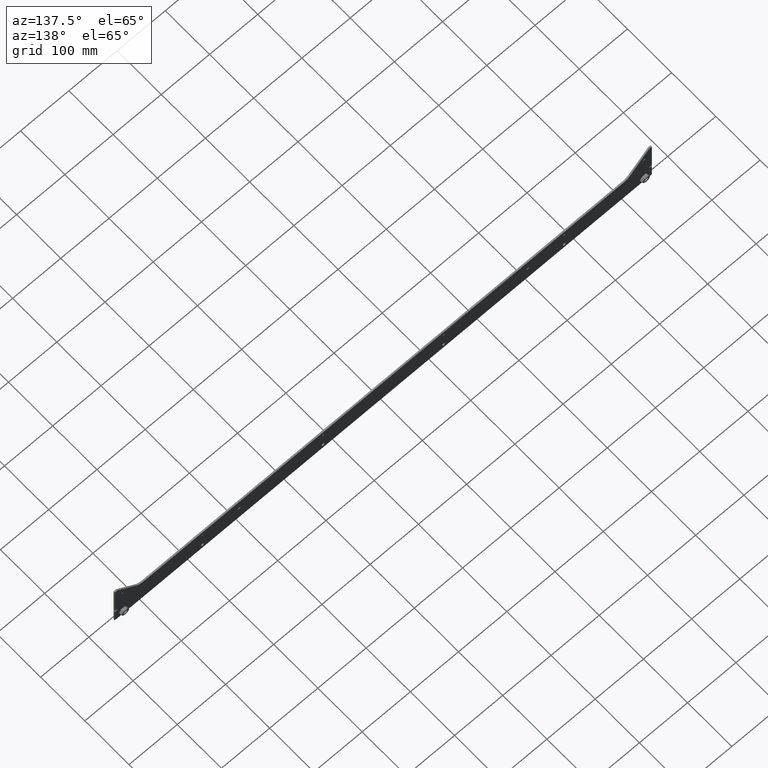
[diagram: clean part render]
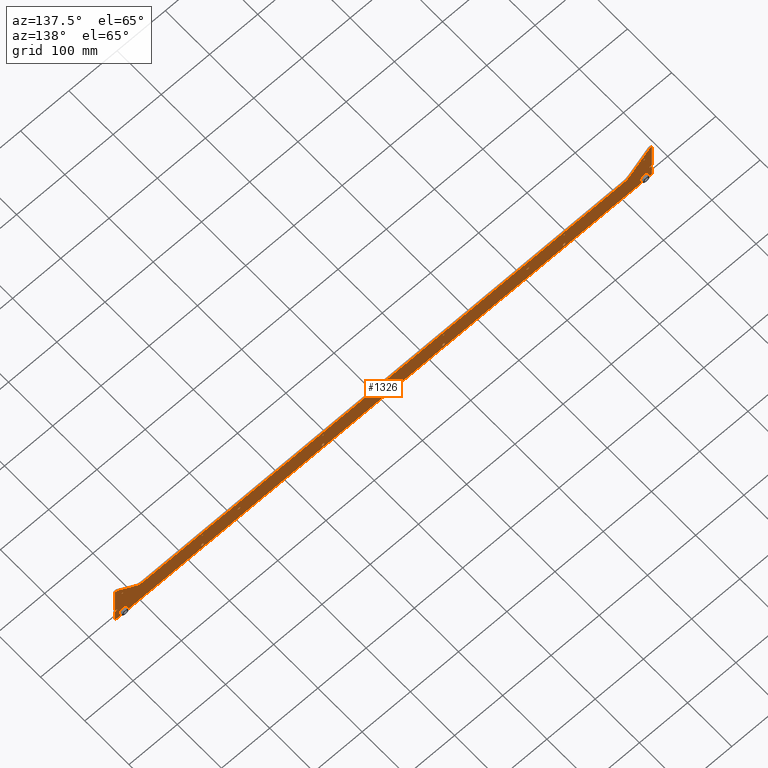
[diagram: same view with one face highlighted and labeled with its STEP entity id]
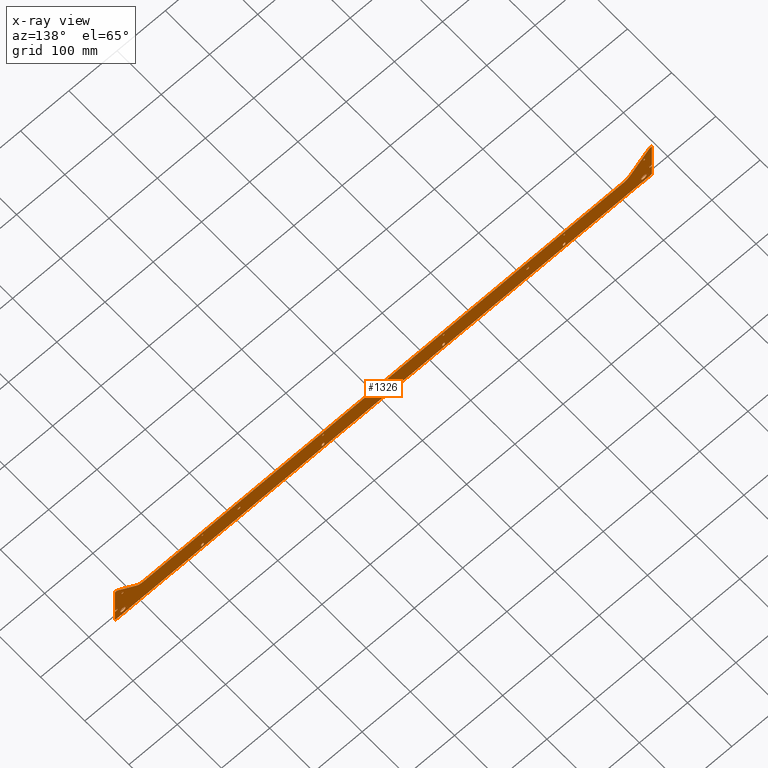
[diagram: x-ray of the same camera — body ghosted, the highlighted face saturated]
A machine part, auxiliary view. The second image highlights one B-rep face of the part: STEP entity #1326.
The next image is the same camera in x-ray: the body ghosted, the highlighted face saturated — about 0% of this face is hidden behind the body in this view.
In plain terms, the highlighted planar face has unit normal (0, 1, 0).
Its self-contained STEP definition (entity closure, byte-faithful):
#10 = DIRECTION ( 'NONE',  ( -0.000000000000000000, -1.000000000000000000, -0.000000000000000000 ) ) ;
#12 = ORIENTED_EDGE ( 'NONE', *, *, #2245, .T. ) ;
#25 = CARTESIAN_POINT ( 'NONE',  ( -122.2500000000000853, -1088.305264068951146, -1224.999999999999091 ) ) ;
#29 = DIRECTION ( 'NONE',  ( 0.000000000000000000, 0.000000000000000000, 1.000000000000000000 ) ) ;
#40 = AXIS2_PLACEMENT_3D ( 'NONE', #1622, #2707, #2167 ) ;
#41 = AXIS2_PLACEMENT_3D ( 'NONE', #2776, #2276, #2813 ) ;
#44 = FACE_BOUND ( 'NONE', #345, .T. ) ;
#49 = CIRCLE ( 'NONE', #3058, 1.600000000000045830 ) ;
#50 = CARTESIAN_POINT ( 'NONE',  ( -375.0000000000000000, -1088.305264068951146, -1222.999999999999318 ) ) ;
#52 = ORIENTED_EDGE ( 'NONE', *, *, #2030, .F. ) ;
#56 = DIRECTION ( 'NONE',  ( -1.000000000000000000, 0.000000000000000000, 0.000000000000000000 ) ) ;
#59 = ORIENTED_EDGE ( 'NONE', *, *, #1518, .F. ) ;
#78 = EDGE_CURVE ( 'NONE', #140, #731, #357, .T. ) ;
#83 = ORIENTED_EDGE ( 'NONE', *, *, #2215, .F. ) ;
#85 = CARTESIAN_POINT ( 'NONE',  ( 127.7499999999999147, -1088.305264068951146, -1224.999999999999091 ) ) ;
#91 = LINE ( 'NONE', #1210, #669 ) ;
#94 = VERTEX_POINT ( 'NONE', #3294 ) ;
#97 = EDGE_CURVE ( 'NONE', #1507, #2668, #1549, .T. ) ;
#99 = CARTESIAN_POINT ( 'NONE',  ( -540.9726412919829954, -1088.305264068951146, -1160.573330363768491 ) ) ;
#100 = DIRECTION ( 'NONE',  ( 0.000000000000000000, 0.000000000000000000, 1.000000000000000000 ) ) ;
#105 = LINE ( 'NONE', #3284, #2119 ) ;
#111 = LINE ( 'NONE', #1997, #2451 ) ;
#115 = DIRECTION ( 'NONE',  ( 0.000000000000000000, 0.000000000000000000, 1.000000000000000000 ) ) ;
#126 = EDGE_CURVE ( 'NONE', #2668, #1507, #708, .T. ) ;
#135 = DIRECTION ( 'NONE',  ( -0.000000000000000000, 1.000000000000000000, -0.000000000000000000 ) ) ;
#140 = VERTEX_POINT ( 'NONE', #3157 ) ;
#149 = CIRCLE ( 'NONE', #2555, 2.749999999999808153 ) ;
#157 = CIRCLE ( 'NONE', #3273, 2.749999999999808153 ) ;
#159 = CARTESIAN_POINT ( 'NONE',  ( 372.2500000000000568, -1088.305264068951146, -1222.999999999999318 ) ) ;
#180 = DIRECTION ( 'NONE',  ( -0.7071067811865425767, -0.000000000000000000, 0.7071067811865525687 ) ) ;
#183 = ORIENTED_EDGE ( 'NONE', *, *, #854, .F. ) ;
#190 = DIRECTION ( 'NONE',  ( -0.000000000000000000, -1.000000000000000000, -0.000000000000000000 ) ) ;
#191 = CARTESIAN_POINT ( 'NONE',  ( 511.6617004082899598, -1088.305264068951146, -1174.142135623730610 ) ) ;
#192 = VERTEX_POINT ( 'NONE', #2575 ) ;
#197 = DIRECTION ( 'NONE',  ( -0.000000000000000000, 0.000000000000000000, -1.000000000000000000 ) ) ;
#201 = ORIENTED_EDGE ( 'NONE', *, *, #205, .F. ) ;
#205 = EDGE_CURVE ( 'NONE', #916, #3180, #2171, .T. ) ;
#215 = CIRCLE ( 'NONE', #1778, 1.600000000000045830 ) ;
#217 = LINE ( 'NONE', #1292, #2411 ) ;
#236 = CARTESIAN_POINT ( 'NONE',  ( 296.6961408822090789, -1088.305264068951146, -1136.999999999999091 ) ) ;
#241 = VERTEX_POINT ( 'NONE', #3398 ) ;
#255 = VERTEX_POINT ( 'NONE', #3416 ) ;
#259 = VERTEX_POINT ( 'NONE', #2300 ) ;
#262 = CIRCLE ( 'NONE', #1886, 2.749999999999808153 ) ;
#272 = DIRECTION ( 'NONE',  ( 0.000000000000000000, 0.000000000000000000, 1.000000000000000000 ) ) ;
#291 = ORIENTED_EDGE ( 'NONE', *, *, #3233, .F. ) ;
#300 = CARTESIAN_POINT ( 'NONE',  ( 296.6961408822090789, -1088.305264068951146, -1204.100000000000136 ) ) ;
#303 = CARTESIAN_POINT ( 'NONE',  ( -556.8038360320210813, -1088.305264068951146, -1233.999999999999773 ) ) ;
#304 = DIRECTION ( 'NONE',  ( 0.000000000000000000, 0.000000000000000000, 1.000000000000000000 ) ) ;
#313 = CARTESIAN_POINT ( 'NONE',  ( 551.6961408822093063, -1088.305264068951146, -1204.099999999999909 ) ) ;
#316 = AXIS2_PLACEMENT_3D ( 'NONE', #3302, #2522, #337 ) ;
#324 = EDGE_CURVE ( 'NONE', #2632, #393, #2390, .T. ) ;
#331 = EDGE_LOOP ( 'NONE', ( #435, #3118, #498, #510 ) ) ;
#337 = DIRECTION ( 'NONE',  ( 0.000000000000000000, 0.000000000000000000, -1.000000000000000000 ) ) ;
#343 = LINE ( 'NONE', #3073, #2904 ) ;
#345 = EDGE_LOOP ( 'NONE', ( #899, #2350 ) ) ;
#349 = DIRECTION ( 'NONE',  ( -1.000000000000000000, 0.000000000000000000, 0.000000000000000000 ) ) ;
#357 = CIRCLE ( 'NONE', #2985, 2.749999999999808153 ) ;
#361 = VECTOR ( 'NONE', #1336, 1000.000000000000000 ) ;
#365 = VECTOR ( 'NONE', #913, 1000.000000000000000 ) ;
#366 = DIRECTION ( 'NONE',  ( -0.000000000000000000, -1.000000000000000000, -0.000000000000000000 ) ) ;
#371 = VECTOR ( 'NONE', #1983, 1000.000000000000000 ) ;
#375 = DIRECTION ( 'NONE',  ( -0.000000000000000000, 0.000000000000000000, -1.000000000000000000 ) ) ;
#378 = CIRCLE ( 'NONE', #1174, 5.200000000000093436 ) ;
#386 = VERTEX_POINT ( 'NONE', #2704 ) ;
#393 = VERTEX_POINT ( 'NONE', #303 ) ;
#409 = EDGE_LOOP ( 'NONE', ( #700, #2792 ) ) ;
#411 = EDGE_LOOP ( 'NONE', ( #183, #52, #1977, #1863 ) ) ;
#413 = CARTESIAN_POINT ( 'NONE',  ( -122.2500000000000853, -1088.305264068951146, -1224.999999999999091 ) ) ;
#420 = LINE ( 'NONE', #2886, #732 ) ;
#429 = AXIS2_PLACEMENT_3D ( 'NONE', #2864, #3412, #1511 ) ;
#435 = ORIENTED_EDGE ( 'NONE', *, *, #3169, .F. ) ;
#442 = CARTESIAN_POINT ( 'NONE',  ( -511.6617004082899598, -1088.305264068951146, -1174.142135623730610 ) ) ;
#443 = EDGE_CURVE ( 'NONE', #1103, #737, #2609, .T. ) ;
#447 = VECTOR ( 'NONE', #3329, 1000.000000000000000 ) ;
#467 = ORIENTED_EDGE ( 'NONE', *, *, #3367, .T. ) ;
#468 = EDGE_CURVE ( 'NONE', #1465, #3084, #933, .T. ) ;
#476 = LINE ( 'NONE', #1545, #963 ) ;
#478 = ORIENTED_EDGE ( 'NONE', *, *, #2920, .T. ) ;
#480 = CARTESIAN_POINT ( 'NONE',  ( -125.0000000000000000, -1088.305264068951146, -1220.249999999999545 ) ) ;
#485 = CARTESIAN_POINT ( 'NONE',  ( -125.0000000000000000, -1088.305264068951146, -1188.400000000000318 ) ) ;
#487 = VECTOR ( 'NONE', #1613, 1000.000000000000000 ) ;
#497 = CARTESIAN_POINT ( 'NONE',  ( -540.0000000000000000, -1088.305264068951146, -1220.000000000000000 ) ) ;
#498 = ORIENTED_EDGE ( 'NONE', *, *, #3291, .F. ) ;
#502 = LINE ( 'NONE', #2364, #2344 ) ;
#507 = CARTESIAN_POINT ( 'NONE',  ( -540.9726412919829954, -1088.305264068951146, -1158.973330363768127 ) ) ;
#508 = ORIENTED_EDGE ( 'NONE', *, *, #684, .F. ) ;
#510 = ORIENTED_EDGE ( 'NONE', *, *, #791, .F. ) ;
#522 = DIRECTION ( 'NONE',  ( -0.000000000000000000, -1.000000000000000000, -0.000000000000000000 ) ) ;
#526 = ORIENTED_EDGE ( 'NONE', *, *, #1119, .F. ) ;
#527 = LINE ( 'NONE', #2950, #361 ) ;
#537 = DIRECTION ( 'NONE',  ( -0.000000000000000000, -1.000000000000000000, -0.000000000000000000 ) ) ;
#541 = DIRECTION ( 'NONE',  ( 0.000000000000000000, 0.000000000000000000, 1.000000000000000000 ) ) ;
#543 = VERTEX_POINT ( 'NONE', #1757 ) ;
#544 = CIRCLE ( 'NONE', #429, 5.200000000000093436 ) ;
#553 = VERTEX_POINT ( 'NONE', #2226 ) ;
#556 = EDGE_CURVE ( 'NONE', #737, #2062, #634, .T. ) ;
#558 = CARTESIAN_POINT ( 'NONE',  ( 497.5195647845589519, -1088.305264068951146, -1180.000000000000000 ) ) ;
#589 = CARTESIAN_POINT ( 'NONE',  ( 553.0464767191406281, -1088.305264068951146, -1136.999999999999091 ) ) ;
#600 = VECTOR ( 'NONE', #3121, 1000.000000000000000 ) ;
#607 = CARTESIAN_POINT ( 'NONE',  ( 551.6961408822093063, -1088.305264068951146, -1200.899999999999864 ) ) ;
#620 = CARTESIAN_POINT ( 'NONE',  ( -556.8038360320210813, -1088.305264068951146, -1200.900000000000091 ) ) ;
#625 = ORIENTED_EDGE ( 'NONE', *, *, #78, .F. ) ;
#632 = ORIENTED_EDGE ( 'NONE', *, *, #1659, .F. ) ;
#633 = EDGE_CURVE ( 'NONE', #2126, #259, #3101, .T. ) ;
#634 = LINE ( 'NONE', #917, #371 ) ;
#637 = EDGE_CURVE ( 'NONE', #2685, #2620, #544, .T. ) ;
#642 = PLANE ( 'NONE',  #774 ) ;
#649 = DIRECTION ( 'NONE',  ( 0.000000000000000000, 0.000000000000000000, -1.000000000000000000 ) ) ;
#654 = VECTOR ( 'NONE', #1372, 1000.000000000000000 ) ;
#665 = ORIENTED_EDGE ( 'NONE', *, *, #1603, .T. ) ;
#669 = VECTOR ( 'NONE', #3276, 1000.000000000000000 ) ;
#684 = EDGE_CURVE ( 'NONE', #2062, #1298, #3368, .T. ) ;
#689 = DIRECTION ( 'NONE',  ( -0.000000000000000000, -1.000000000000000000, -0.000000000000000000 ) ) ;
#700 = ORIENTED_EDGE ( 'NONE', *, *, #1285, .T. ) ;
#702 = CARTESIAN_POINT ( 'NONE',  ( 125.0000000000000000, -1088.305264068951146, -1190.000000000000455 ) ) ;
#708 = CIRCLE ( 'NONE', #2657, 1.600000000000045830 ) ;
#725 = EDGE_CURVE ( 'NONE', #2652, #1465, #1632, .T. ) ;
#727 = ORIENTED_EDGE ( 'NONE', *, *, #1362, .F. ) ;
#731 = VERTEX_POINT ( 'NONE', #2388 ) ;
#732 = VECTOR ( 'NONE', #1514, 1000.000000000000000 ) ;
#737 = VERTEX_POINT ( 'NONE', #1582 ) ;
#738 = ORIENTED_EDGE ( 'NONE', *, *, #1474, .F. ) ;
#756 = CARTESIAN_POINT ( 'NONE',  ( 296.6961408822090789, -1088.305264068951146, -1200.900000000000091 ) ) ;
#774 = AXIS2_PLACEMENT_3D ( 'NONE', #589, #857, #2186 ) ;
#779 = CARTESIAN_POINT ( 'NONE',  ( 540.9726412919829954, -1088.305264068951146, -1157.373330363767991 ) ) ;
#782 = ORIENTED_EDGE ( 'NONE', *, *, #468, .F. ) ;
#783 = CARTESIAN_POINT ( 'NONE',  ( -540.0000000000000000, -1088.305264068951146, -1220.000000000000000 ) ) ;
#791 = EDGE_CURVE ( 'NONE', #1749, #800, #527, .T. ) ;
#800 = VERTEX_POINT ( 'NONE', #300 ) ;
#801 = EDGE_CURVE ( 'NONE', #241, #945, #912, .T. ) ;
#809 = ORIENTED_EDGE ( 'NONE', *, *, #637, .T. ) ;
#811 = EDGE_CURVE ( 'NONE', #2258, #543, #825, .T. ) ;
#813 = CARTESIAN_POINT ( 'NONE',  ( 125.0000000000000000, -1088.305264068951146, -1188.400000000000318 ) ) ;
#815 = VERTEX_POINT ( 'NONE', #1888 ) ;
#825 = CIRCLE ( 'NONE', #2767, 2.749999999999808153 ) ;
#843 = CIRCLE ( 'NONE', #958, 2.749999999999808153 ) ;
#845 = LINE ( 'NONE', #1910, #1850 ) ;
#847 = DIRECTION ( 'NONE',  ( -0.000000000000000000, 1.000000000000000000, -0.000000000000000000 ) ) ;
#851 = CARTESIAN_POINT ( 'NONE',  ( 553.0464767191406281, -1088.305264068951146, -1204.100000000000136 ) ) ;
#854 = EDGE_CURVE ( 'NONE', #863, #1862, #1870, .T. ) ;
#857 = DIRECTION ( 'NONE',  ( 0.000000000000000000, 1.000000000000000000, 0.000000000000000000 ) ) ;
#863 = VERTEX_POINT ( 'NONE', #1663 ) ;
#866 = ORIENTED_EDGE ( 'NONE', *, *, #2851, .F. ) ;
#870 = FACE_BOUND ( 'NONE', #409, .T. ) ;
#873 = CARTESIAN_POINT ( 'NONE',  ( 553.0464767191406281, -1088.305264068951146, -1133.999999999999318 ) ) ;
#876 = CARTESIAN_POINT ( 'NONE',  ( 553.0464767191406281, -1088.305264068951146, -1133.999999999999091 ) ) ;
#879 = CARTESIAN_POINT ( 'NONE',  ( -556.8038360320210813, -1088.305264068951146, -1233.999999999999773 ) ) ;
#882 = CARTESIAN_POINT ( 'NONE',  ( -122.2500000000000853, -1088.305264068951146, -1222.999999999999318 ) ) ;
#886 = CIRCLE ( 'NONE', #3164, 2.749999999999808153 ) ;
#888 = AXIS2_PLACEMENT_3D ( 'NONE', #2316, #1031, #988 ) ;
#889 = VERTEX_POINT ( 'NONE', #1924 ) ;
#890 = FACE_BOUND ( 'NONE', #1396, .T. ) ;
#895 = CARTESIAN_POINT ( 'NONE',  ( -375.0000000000000000, -1088.305264068951146, -1190.000000000000455 ) ) ;
#899 = ORIENTED_EDGE ( 'NONE', *, *, #3395, .T. ) ;
#909 = FACE_BOUND ( 'NONE', #331, .T. ) ;
#910 = CARTESIAN_POINT ( 'NONE',  ( -375.0000000000000000, -1088.305264068951146, -1191.600000000000364 ) ) ;
#912 = LINE ( 'NONE', #873, #3119 ) ;
#913 = DIRECTION ( 'NONE',  ( 0.000000000000000000, 0.000000000000000000, 1.000000000000000000 ) ) ;
#916 = VERTEX_POINT ( 'NONE', #2535 ) ;
#917 = CARTESIAN_POINT ( 'NONE',  ( 372.2500000000000568, -1088.305264068951146, -1224.999999999999091 ) ) ;
#922 = CARTESIAN_POINT ( 'NONE',  ( 122.2500000000000853, -1088.305264068951146, -1222.999999999999318 ) ) ;
#933 = LINE ( 'NONE', #879, #1284 ) ;
#941 = AXIS2_PLACEMENT_3D ( 'NONE', #2087, #190, #2569 ) ;
#945 = VERTEX_POINT ( 'NONE', #876 ) ;
#957 = CARTESIAN_POINT ( 'NONE',  ( 375.0000000000000000, -1088.305264068951146, -1224.999999999999091 ) ) ;
#958 = AXIS2_PLACEMENT_3D ( 'NONE', #2764, #135, #100 ) ;
#961 = DIRECTION ( 'NONE',  ( 0.000000000000000000, 0.000000000000000000, 1.000000000000000000 ) ) ;
#963 = VECTOR ( 'NONE', #2095, 1000.000000000000000 ) ;
#975 = CARTESIAN_POINT ( 'NONE',  ( 540.9726412919829954, -1088.305264068951146, -1160.573330363768491 ) ) ;
#979 = EDGE_LOOP ( 'NONE', ( #201, #3146, #1003, #3070, #1042 ) ) ;
#982 = EDGE_CURVE ( 'NONE', #3180, #553, #1184, .T. ) ;
#988 = DIRECTION ( 'NONE',  ( 0.000000000000000000, 0.000000000000000000, 1.000000000000000000 ) ) ;
#1001 = CARTESIAN_POINT ( 'NONE',  ( -127.7499999999999147, -1088.305264068951146, -1224.999999999999091 ) ) ;
#1003 = ORIENTED_EDGE ( 'NONE', *, *, #811, .F. ) ;
#1005 = VECTOR ( 'NONE', #1828, 1000.000000000000000 ) ;
#1021 = CARTESIAN_POINT ( 'NONE',  ( -497.5195647845589519, -1088.305264068951146, -1180.000000000000000 ) ) ;
#1028 = LINE ( 'NONE', #191, #1182 ) ;
#1031 = DIRECTION ( 'NONE',  ( -0.000000000000000000, 1.000000000000000000, -0.000000000000000000 ) ) ;
#1042 = ORIENTED_EDGE ( 'NONE', *, *, #982, .F. ) ;
#1046 = ORIENTED_EDGE ( 'NONE', *, *, #2422, .F. ) ;
#1052 = VERTEX_POINT ( 'NONE', #2547 ) ;
#1055 = CARTESIAN_POINT ( 'NONE',  ( 553.0464767191406281, -1088.305264068951146, -1200.899999999999864 ) ) ;
#1057 = EDGE_CURVE ( 'NONE', #2930, #255, #215, .T. ) ;
#1074 = CIRCLE ( 'NONE', #2012, 2.749999999999808153 ) ;
#1087 = LINE ( 'NONE', #2424, #2068 ) ;
#1094 = CARTESIAN_POINT ( 'NONE',  ( 553.0464767191406281, -1088.305264068951146, -1136.999999999999091 ) ) ;
#1103 = VERTEX_POINT ( 'NONE', #1485 ) ;
#1107 = DIRECTION ( 'NONE',  ( -0.000000000000000000, 1.000000000000000000, -0.000000000000000000 ) ) ;
#1119 = EDGE_CURVE ( 'NONE', #94, #2652, #1998, .T. ) ;
#1121 = ORIENTED_EDGE ( 'NONE', *, *, #3309, .F. ) ;
#1126 = CARTESIAN_POINT ( 'NONE',  ( -551.6961408822093063, -1088.305264068951146, -1204.100000000000136 ) ) ;
#1128 = VERTEX_POINT ( 'NONE', #1001 ) ;
#1133 = ORIENTED_EDGE ( 'NONE', *, *, #2880, .F. ) ;
#1138 = LINE ( 'NONE', #1916, #1999 ) ;
#1139 = ORIENTED_EDGE ( 'NONE', *, *, #1536, .F. ) ;
#1141 = FACE_BOUND ( 'NONE', #1143, .T. ) ;
#1143 = EDGE_LOOP ( 'NONE', ( #467, #809 ) ) ;
#1153 = EDGE_CURVE ( 'NONE', #3152, #1590, #1852, .T. ) ;
#1156 = FACE_BOUND ( 'NONE', #2332, .T. ) ;
#1158 = ORIENTED_EDGE ( 'NONE', *, *, #443, .F. ) ;
#1169 = DIRECTION ( 'NONE',  ( -0.000000000000000000, 0.000000000000000000, -1.000000000000000000 ) ) ;
#1172 = CIRCLE ( 'NONE', #1832, 1.600000000000267875 ) ;
#1174 = AXIS2_PLACEMENT_3D ( 'NONE', #497, #1530, #1570 ) ;
#1182 = VECTOR ( 'NONE', #2329, 1000.000000000000000 ) ;
#1184 = LINE ( 'NONE', #2239, #365 ) ;
#1190 = AXIS2_PLACEMENT_3D ( 'NONE', #1791, #1238, #2848 ) ;
#1197 = ORIENTED_EDGE ( 'NONE', *, *, #556, .F. ) ;
#1206 = EDGE_CURVE ( 'NONE', #1298, #1052, #149, .T. ) ;
#1208 = DIRECTION ( 'NONE',  ( -0.000000000000000000, 0.000000000000000000, -1.000000000000000000 ) ) ;
#1210 = CARTESIAN_POINT ( 'NONE',  ( 301.8961408822090675, -1088.305264068951146, -1136.999999999999091 ) ) ;
#1213 = CARTESIAN_POINT ( 'NONE',  ( 556.8038360320210813, -1088.305264068951146, -1200.899999999999864 ) ) ;
#1216 = VERTEX_POINT ( 'NONE', #25 ) ;
#1220 = CARTESIAN_POINT ( 'NONE',  ( 122.2500000000000853, -1088.305264068951146, -1224.999999999999091 ) ) ;
#1225 = EDGE_CURVE ( 'NONE', #1456, #3093, #262, .T. ) ;
#1227 = VECTOR ( 'NONE', #2646, 1000.000000000000000 ) ;
#1228 = CARTESIAN_POINT ( 'NONE',  ( -511.6617004082899598, -1088.305264068951146, -1174.142135623730610 ) ) ;
#1234 = VERTEX_POINT ( 'NONE', #1866 ) ;
#1237 = CIRCLE ( 'NONE', #3389, 1.600000000000267875 ) ;
#1238 = DIRECTION ( 'NONE',  ( -0.000000000000000000, -1.000000000000000000, -0.000000000000000000 ) ) ;
#1246 = EDGE_CURVE ( 'NONE', #945, #2099, #2224, .T. ) ;
#1258 = VERTEX_POINT ( 'NONE', #3170 ) ;
#1264 = EDGE_CURVE ( 'NONE', #1320, #2039, #1667, .T. ) ;
#1266 = CARTESIAN_POINT ( 'NONE',  ( -553.0464767191405144, -1088.305264068951146, -1133.999999999999318 ) ) ;
#1271 = LINE ( 'NONE', #442, #2237 ) ;
#1280 = DIRECTION ( 'NONE',  ( -0.000000000000000000, -1.000000000000000000, -0.000000000000000000 ) ) ;
#1284 = VECTOR ( 'NONE', #649, 1000.000000000000000 ) ;
#1285 = EDGE_CURVE ( 'NONE', #2039, #1320, #1172, .T. ) ;
#1292 = CARTESIAN_POINT ( 'NONE',  ( 377.7499999999999432, -1088.305264068951146, -1224.999999999999091 ) ) ;
#1298 = VERTEX_POINT ( 'NONE', #2104 ) ;
#1308 = EDGE_CURVE ( 'NONE', #889, #3152, #1559, .T. ) ;
#1314 = VERTEX_POINT ( 'NONE', #313 ) ;
#1319 = ORIENTED_EDGE ( 'NONE', *, *, #1382, .T. ) ;
#1320 = VERTEX_POINT ( 'NONE', #99 ) ;
#1326 = ADVANCED_FACE ( 'NONE', ( #1156, #1989, #1975, #2198, #3264, #3040, #909, #1141, #3026, #3245, #890, #2446, #44, #870, #1956 ), #642, .T. ) ;
#1327 = ORIENTED_EDGE ( 'NONE', *, *, #1225, .F. ) ;
#1335 = ORIENTED_EDGE ( 'NONE', *, *, #725, .F. ) ;
#1336 = DIRECTION ( 'NONE',  ( -1.000000000000000000, 0.000000000000000000, 0.000000000000000000 ) ) ;
#1344 = VERTEX_POINT ( 'NONE', #1126 ) ;
#1362 = EDGE_CURVE ( 'NONE', #2979, #1314, #1730, .T. ) ;
#1364 = DIRECTION ( 'NONE',  ( 0.000000000000000000, 0.000000000000000000, 1.000000000000000000 ) ) ;
#1372 = DIRECTION ( 'NONE',  ( 0.000000000000000000, 0.000000000000000000, -1.000000000000000000 ) ) ;
#1373 = EDGE_LOOP ( 'NONE', ( #727, #2762, #632, #2041, #83, #3393, #1121, #782, #1335, #526, #1645, #3241, #3211, #2415, #1805, #1473, #2250, #1854, #59, #738 ) ) ;
#1374 = CARTESIAN_POINT ( 'NONE',  ( 301.8961408822090675, -1088.305264068951146, -1204.100000000000136 ) ) ;
#1382 = EDGE_CURVE ( 'NONE', #386, #2925, #1944, .T. ) ;
#1384 = AXIS2_PLACEMENT_3D ( 'NONE', #783, #1848, #1574 ) ;
#1390 = VECTOR ( 'NONE', #375, 1000.000000000000000 ) ;
#1394 = DIRECTION ( 'NONE',  ( 0.000000000000000000, 0.000000000000000000, 1.000000000000000000 ) ) ;
#1396 = EDGE_LOOP ( 'NONE', ( #3032, #12 ) ) ;
#1403 = CIRCLE ( 'NONE', #1905, 1.600000000000045830 ) ;
#1416 = CARTESIAN_POINT ( 'NONE',  ( 540.9726412919829954, -1088.305264068951146, -1158.973330363768127 ) ) ;
#1433 = CARTESIAN_POINT ( 'NONE',  ( -556.8038360320210813, -1088.305264068951146, -1133.999999999999091 ) ) ;
#1440 = CARTESIAN_POINT ( 'NONE',  ( 497.5195647845589519, -1088.305264068951146, -1180.000000000000000 ) ) ;
#1441 = DIRECTION ( 'NONE',  ( -0.000000000000000000, -1.000000000000000000, -0.000000000000000000 ) ) ;
#1442 = CARTESIAN_POINT ( 'NONE',  ( -125.0000000000000000, -1088.305264068951146, -1222.999999999999318 ) ) ;
#1449 = CARTESIAN_POINT ( 'NONE',  ( 375.0000000000000000, -1088.305264068951146, -1190.000000000000455 ) ) ;
#1456 = VERTEX_POINT ( 'NONE', #85 ) ;
#1458 = DIRECTION ( 'NONE',  ( -0.000000000000000000, 1.000000000000000000, -0.000000000000000000 ) ) ;
#1465 = VERTEX_POINT ( 'NONE', #1433 ) ;
#1473 = ORIENTED_EDGE ( 'NONE', *, *, #1246, .F. ) ;
#1474 = EDGE_CURVE ( 'NONE', #1314, #2850, #105, .T. ) ;
#1485 = CARTESIAN_POINT ( 'NONE',  ( 377.7499999999999432, -1088.305264068951146, -1224.999999999999091 ) ) ;
#1487 = EDGE_LOOP ( 'NONE', ( #1133, #3151, #1856, #866, #3161 ) ) ;
#1499 = AXIS2_PLACEMENT_3D ( 'NONE', #1094, #537, #272 ) ;
#1507 = VERTEX_POINT ( 'NONE', #1662 ) ;
#1511 = DIRECTION ( 'NONE',  ( 0.000000000000000000, 0.000000000000000000, -1.000000000000000000 ) ) ;
#1514 = DIRECTION ( 'NONE',  ( 0.000000000000000000, 0.000000000000000000, 1.000000000000000000 ) ) ;
#1516 = CARTESIAN_POINT ( 'NONE',  ( -375.0000000000000000, -1088.305264068951146, -1224.999999999999091 ) ) ;
#1518 = EDGE_CURVE ( 'NONE', #2850, #2844, #3421, .T. ) ;
#1520 = CARTESIAN_POINT ( 'NONE',  ( -551.6961408822093063, -1088.305264068951146, -1136.999999999999091 ) ) ;
#1530 = DIRECTION ( 'NONE',  ( -0.000000000000000000, -1.000000000000000000, -0.000000000000000000 ) ) ;
#1536 = EDGE_CURVE ( 'NONE', #3093, #1849, #2116, .T. ) ;
#1544 = DIRECTION ( 'NONE',  ( 0.000000000000000000, 0.000000000000000000, -1.000000000000000000 ) ) ;
#1545 = CARTESIAN_POINT ( 'NONE',  ( 553.0464767191406281, -1088.305264068951146, -1200.900000000000091 ) ) ;
#1549 = CIRCLE ( 'NONE', #2885, 1.600000000000045830 ) ;
#1555 = CIRCLE ( 'NONE', #40, 1.600000000000045830 ) ;
#1559 = CIRCLE ( 'NONE', #2716, 20.00000000000001776 ) ;
#1562 = ORIENTED_EDGE ( 'NONE', *, *, #1206, .F. ) ;
#1563 = VECTOR ( 'NONE', #56, 1000.000000000000000 ) ;
#1570 = DIRECTION ( 'NONE',  ( 0.000000000000000000, 0.000000000000000000, 1.000000000000000000 ) ) ;
#1574 = DIRECTION ( 'NONE',  ( 0.000000000000000000, 0.000000000000000000, 1.000000000000000000 ) ) ;
#1582 = CARTESIAN_POINT ( 'NONE',  ( 372.2500000000000568, -1088.305264068951146, -1224.999999999999091 ) ) ;
#1583 = CARTESIAN_POINT ( 'NONE',  ( -375.0000000000000000, -1088.305264068951146, -1220.249999999999545 ) ) ;
#1590 = VERTEX_POINT ( 'NONE', #1021 ) ;
#1603 = EDGE_CURVE ( 'NONE', #192, #3183, #3376, .T. ) ;
#1611 = ORIENTED_EDGE ( 'NONE', *, *, #2102, .T. ) ;
#1613 = DIRECTION ( 'NONE',  ( 0.000000000000000000, 0.000000000000000000, 1.000000000000000000 ) ) ;
#1622 = CARTESIAN_POINT ( 'NONE',  ( 375.0000000000000000, -1088.305264068951146, -1190.000000000000455 ) ) ;
#1623 = EDGE_CURVE ( 'NONE', #3230, #3075, #502, .T. ) ;
#1625 = VECTOR ( 'NONE', #2574, 1000.000000000000000 ) ;
#1628 = VERTEX_POINT ( 'NONE', #480 ) ;
#1632 = LINE ( 'NONE', #2687, #1826 ) ;
#1643 = DIRECTION ( 'NONE',  ( -1.000000000000000000, 0.000000000000000000, 0.000000000000000000 ) ) ;
#1645 = ORIENTED_EDGE ( 'NONE', *, *, #3228, .F. ) ;
#1647 = EDGE_CURVE ( 'NONE', #2925, #386, #1555, .T. ) ;
#1649 = CARTESIAN_POINT ( 'NONE',  ( 125.0000000000000000, -1088.305264068951146, -1222.999999999999318 ) ) ;
#1656 = CARTESIAN_POINT ( 'NONE',  ( 553.0464767191406281, -1088.305264068951146, -1204.099999999999909 ) ) ;
#1659 = EDGE_CURVE ( 'NONE', #393, #1676, #1138, .T. ) ;
#1662 = CARTESIAN_POINT ( 'NONE',  ( -125.0000000000000000, -1088.305264068951146, -1191.600000000000364 ) ) ;
#1663 = CARTESIAN_POINT ( 'NONE',  ( -301.8961408822090675, -1088.305264068951146, -1204.100000000000136 ) ) ;
#1667 = CIRCLE ( 'NONE', #2225, 1.600000000000267875 ) ;
#1669 = LINE ( 'NONE', #851, #1563 ) ;
#1675 = DIRECTION ( 'NONE',  ( -0.000000000000000000, 1.000000000000000000, -0.000000000000000000 ) ) ;
#1676 = VERTEX_POINT ( 'NONE', #1688 ) ;
#1688 = CARTESIAN_POINT ( 'NONE',  ( 556.8038360320210813, -1088.305264068951146, -1233.999999999999773 ) ) ;
#1728 = VECTOR ( 'NONE', #2527, 1000.000000000000000 ) ;
#1730 = LINE ( 'NONE', #1656, #3104 ) ;
#1739 = CIRCLE ( 'NONE', #2627, 2.749999999999808153 ) ;
#1741 = LINE ( 'NONE', #3072, #1728 ) ;
#1749 = VERTEX_POINT ( 'NONE', #1374 ) ;
#1757 = CARTESIAN_POINT ( 'NONE',  ( -372.2500000000000568, -1088.305264068951146, -1222.999999999999318 ) ) ;
#1760 = DIRECTION ( 'NONE',  ( 0.000000000000000000, 0.000000000000000000, 1.000000000000000000 ) ) ;
#1778 = AXIS2_PLACEMENT_3D ( 'NONE', #1817, #1280, #2349 ) ;
#1781 = EDGE_LOOP ( 'NONE', ( #1158, #291, #1562, #508, #1197 ) ) ;
#1791 = CARTESIAN_POINT ( 'NONE',  ( 540.0000000000000000, -1088.305264068951146, -1220.000000000000000 ) ) ;
#1805 = ORIENTED_EDGE ( 'NONE', *, *, #2662, .F. ) ;
#1817 = CARTESIAN_POINT ( 'NONE',  ( -375.0000000000000000, -1088.305264068951146, -1190.000000000000455 ) ) ;
#1826 = VECTOR ( 'NONE', #3176, 1000.000000000000000 ) ;
#1828 = DIRECTION ( 'NONE',  ( 0.000000000000000000, 0.000000000000000000, 1.000000000000000000 ) ) ;
#1830 = VECTOR ( 'NONE', #1643, 1000.000000000000000 ) ;
#1832 = AXIS2_PLACEMENT_3D ( 'NONE', #2697, #522, #3408 ) ;
#1834 = EDGE_CURVE ( 'NONE', #1628, #3144, #157, .T. ) ;
#1836 = CARTESIAN_POINT ( 'NONE',  ( -556.8038360320210813, -1088.305264068951146, -1204.100000000000136 ) ) ;
#1847 = ORIENTED_EDGE ( 'NONE', *, *, #1647, .T. ) ;
#1848 = DIRECTION ( 'NONE',  ( -0.000000000000000000, -1.000000000000000000, -0.000000000000000000 ) ) ;
#1849 = VERTEX_POINT ( 'NONE', #922 ) ;
#1850 = VECTOR ( 'NONE', #2966, 1000.000000000000000 ) ;
#1852 = LINE ( 'NONE', #558, #1830 ) ;
#1854 = ORIENTED_EDGE ( 'NONE', *, *, #2401, .F. ) ;
#1856 = ORIENTED_EDGE ( 'NONE', *, *, #1834, .F. ) ;
#1862 = VERTEX_POINT ( 'NONE', #3057 ) ;
#1863 = ORIENTED_EDGE ( 'NONE', *, *, #3423, .F. ) ;
#1866 = CARTESIAN_POINT ( 'NONE',  ( 125.0000000000000000, -1088.305264068951146, -1191.600000000000364 ) ) ;
#1870 = LINE ( 'NONE', #2161, #487 ) ;
#1886 = AXIS2_PLACEMENT_3D ( 'NONE', #2430, #1107, #2897 ) ;
#1888 = CARTESIAN_POINT ( 'NONE',  ( -127.7499999999999147, -1088.305264068951146, -1222.999999999999318 ) ) ;
#1897 = EDGE_CURVE ( 'NONE', #3183, #192, #378, .T. ) ;
#1905 = AXIS2_PLACEMENT_3D ( 'NONE', #895, #1960, #29 ) ;
#1910 = CARTESIAN_POINT ( 'NONE',  ( 553.0464767191406281, -1088.305264068951146, -1200.900000000000091 ) ) ;
#1911 = DIRECTION ( 'NONE',  ( -0.000000000000000000, 1.000000000000000000, -0.000000000000000000 ) ) ;
#1913 = CARTESIAN_POINT ( 'NONE',  ( -556.8038360320210813, -1088.305264068951146, -1233.999999999999773 ) ) ;
#1916 = CARTESIAN_POINT ( 'NONE',  ( 556.8038360320210813, -1088.305264068951146, -1233.999999999999773 ) ) ;
#1924 = CARTESIAN_POINT ( 'NONE',  ( 511.6617004082899598, -1088.305264068951146, -1174.142135623730610 ) ) ;
#1934 = DIRECTION ( 'NONE',  ( 0.000000000000000000, 0.000000000000000000, 1.000000000000000000 ) ) ;
#1938 = AXIS2_PLACEMENT_3D ( 'NONE', #1516, #2831, #3088 ) ;
#1941 = VERTEX_POINT ( 'NONE', #779 ) ;
#1944 = CIRCLE ( 'NONE', #3160, 1.600000000000045830 ) ;
#1946 = CARTESIAN_POINT ( 'NONE',  ( -375.0000000000000000, -1088.305264068951146, -1222.999999999999318 ) ) ;
#1956 = FACE_BOUND ( 'NONE', #2387, .T. ) ;
#1960 = DIRECTION ( 'NONE',  ( -0.000000000000000000, -1.000000000000000000, -0.000000000000000000 ) ) ;
#1975 = FACE_BOUND ( 'NONE', #1487, .T. ) ;
#1977 = ORIENTED_EDGE ( 'NONE', *, *, #633, .F. ) ;
#1978 = DIRECTION ( 'NONE',  ( 0.000000000000000000, 0.000000000000000000, 1.000000000000000000 ) ) ;
#1983 = DIRECTION ( 'NONE',  ( 0.000000000000000000, 0.000000000000000000, 1.000000000000000000 ) ) ;
#1989 = FACE_BOUND ( 'NONE', #1781, .T. ) ;
#1997 = CARTESIAN_POINT ( 'NONE',  ( -372.2500000000000568, -1088.305264068951146, -1224.999999999999091 ) ) ;
#1998 = CIRCLE ( 'NONE', #941, 3.000000000000113687 ) ;
#1999 = VECTOR ( 'NONE', #2477, 1000.000000000000000 ) ;
#2006 = CIRCLE ( 'NONE', #41, 1.600000000000267875 ) ;
#2012 = AXIS2_PLACEMENT_3D ( 'NONE', #1649, #847, #2149 ) ;
#2029 = VERTEX_POINT ( 'NONE', #813 ) ;
#2030 = EDGE_CURVE ( 'NONE', #259, #863, #1669, .T. ) ;
#2039 = VERTEX_POINT ( 'NONE', #2725 ) ;
#2041 = ORIENTED_EDGE ( 'NONE', *, *, #324, .F. ) ;
#2051 = EDGE_CURVE ( 'NONE', #553, #2258, #886, .T. ) ;
#2062 = VERTEX_POINT ( 'NONE', #159 ) ;
#2068 = VECTOR ( 'NONE', #2688, 1000.000000000000000 ) ;
#2073 = EDGE_CURVE ( 'NONE', #1676, #2979, #1741, .T. ) ;
#2074 = CIRCLE ( 'NONE', #2134, 1.600000000000045830 ) ;
#2087 = CARTESIAN_POINT ( 'NONE',  ( -553.0464767191406281, -1088.305264068951146, -1136.999999999999091 ) ) ;
#2088 = CARTESIAN_POINT ( 'NONE',  ( 540.0000000000000000, -1088.305264068951146, -1225.200000000000045 ) ) ;
#2095 = DIRECTION ( 'NONE',  ( 1.000000000000000000, 0.000000000000000000, 0.000000000000000000 ) ) ;
#2099 = VERTEX_POINT ( 'NONE', #3305 ) ;
#2102 = EDGE_CURVE ( 'NONE', #1941, #2123, #2006, .T. ) ;
#2104 = CARTESIAN_POINT ( 'NONE',  ( 375.0000000000000000, -1088.305264068951146, -1220.249999999999545 ) ) ;
#2116 = LINE ( 'NONE', #3162, #1005 ) ;
#2117 = EDGE_CURVE ( 'NONE', #543, #916, #111, .T. ) ;
#2119 = VECTOR ( 'NONE', #1978, 1000.000000000000000 ) ;
#2123 = VERTEX_POINT ( 'NONE', #975 ) ;
#2126 = VERTEX_POINT ( 'NONE', #2244 ) ;
#2134 = AXIS2_PLACEMENT_3D ( 'NONE', #2545, #2306, #3346 ) ;
#2136 = CIRCLE ( 'NONE', #1190, 5.200000000000093436 ) ;
#2149 = DIRECTION ( 'NONE',  ( 0.000000000000000000, 0.000000000000000000, 1.000000000000000000 ) ) ;
#2156 = DIRECTION ( 'NONE',  ( 0.000000000000000000, 0.000000000000000000, 1.000000000000000000 ) ) ;
#2161 = CARTESIAN_POINT ( 'NONE',  ( -301.8961408822090675, -1088.305264068951146, -1136.999999999999091 ) ) ;
#2167 = DIRECTION ( 'NONE',  ( 0.000000000000000000, 0.000000000000000000, -1.000000000000000000 ) ) ;
#2171 = CIRCLE ( 'NONE', #1938, 2.749999999999808153 ) ;
#2186 = DIRECTION ( 'NONE',  ( 0.000000000000000000, 0.000000000000000000, 1.000000000000000000 ) ) ;
#2198 = FACE_BOUND ( 'NONE', #979, .T. ) ;
#2215 = EDGE_CURVE ( 'NONE', #1344, #2632, #2883, .T. ) ;
#2224 = CIRCLE ( 'NONE', #1499, 3.000000000000113687 ) ;
#2225 = AXIS2_PLACEMENT_3D ( 'NONE', #507, #10, #2156 ) ;
#2226 = CARTESIAN_POINT ( 'NONE',  ( -377.7499999999999432, -1088.305264068951146, -1222.999999999999318 ) ) ;
#2228 = CARTESIAN_POINT ( 'NONE',  ( -540.0000000000000000, -1088.305264068951146, -1225.200000000000045 ) ) ;
#2230 = VECTOR ( 'NONE', #3355, 1000.000000000000000 ) ;
#2237 = VECTOR ( 'NONE', #180, 1000.000000000000000 ) ;
#2239 = CARTESIAN_POINT ( 'NONE',  ( -377.7499999999999432, -1088.305264068951146, -1224.999999999999091 ) ) ;
#2244 = CARTESIAN_POINT ( 'NONE',  ( -296.6961408822090789, -1088.305264068951146, -1200.900000000000091 ) ) ;
#2245 = EDGE_CURVE ( 'NONE', #1234, #2029, #49, .T. ) ;
#2250 = ORIENTED_EDGE ( 'NONE', *, *, #801, .F. ) ;
#2258 = VERTEX_POINT ( 'NONE', #1583 ) ;
#2276 = DIRECTION ( 'NONE',  ( -0.000000000000000000, -1.000000000000000000, -0.000000000000000000 ) ) ;
#2300 = CARTESIAN_POINT ( 'NONE',  ( -296.6961408822090789, -1088.305264068951146, -1204.100000000000136 ) ) ;
#2306 = DIRECTION ( 'NONE',  ( -0.000000000000000000, -1.000000000000000000, -0.000000000000000000 ) ) ;
#2312 = CARTESIAN_POINT ( 'NONE',  ( 540.0000000000000000, -1088.305264068951146, -1214.799999999999955 ) ) ;
#2316 = CARTESIAN_POINT ( 'NONE',  ( 375.0000000000000000, -1088.305264068951146, -1222.999999999999318 ) ) ;
#2329 = DIRECTION ( 'NONE',  ( -0.7071067811865425767, 0.000000000000000000, -0.7071067811865525687 ) ) ;
#2332 = EDGE_LOOP ( 'NONE', ( #1327, #2689, #625, #1046, #1139 ) ) ;
#2344 = VECTOR ( 'NONE', #2909, 1000.000000000000000 ) ;
#2349 = DIRECTION ( 'NONE',  ( 0.000000000000000000, 0.000000000000000000, 1.000000000000000000 ) ) ;
#2350 = ORIENTED_EDGE ( 'NONE', *, *, #1057, .T. ) ;
#2364 = CARTESIAN_POINT ( 'NONE',  ( 553.0464767191406281, -1088.305264068951146, -1200.900000000000091 ) ) ;
#2387 = EDGE_LOOP ( 'NONE', ( #665, #3431 ) ) ;
#2388 = CARTESIAN_POINT ( 'NONE',  ( 127.7499999999999147, -1088.305264068951146, -1222.999999999999318 ) ) ;
#2390 = LINE ( 'NONE', #1913, #654 ) ;
#2401 = EDGE_CURVE ( 'NONE', #2844, #241, #1087, .T. ) ;
#2411 = VECTOR ( 'NONE', #197, 1000.000000000000000 ) ;
#2415 = ORIENTED_EDGE ( 'NONE', *, *, #1308, .F. ) ;
#2422 = EDGE_CURVE ( 'NONE', #1849, #140, #1074, .T. ) ;
#2424 = CARTESIAN_POINT ( 'NONE',  ( 556.8038360320210813, -1088.305264068951146, -1233.999999999999773 ) ) ;
#2430 = CARTESIAN_POINT ( 'NONE',  ( 125.0000000000000000, -1088.305264068951146, -1224.999999999999091 ) ) ;
#2446 = FACE_BOUND ( 'NONE', #2730, .T. ) ;
#2451 = VECTOR ( 'NONE', #1208, 1000.000000000000000 ) ;
#2459 = EDGE_CURVE ( 'NONE', #3144, #1216, #2808, .T. ) ;
#2477 = DIRECTION ( 'NONE',  ( 1.000000000000000000, 0.000000000000000000, 0.000000000000000000 ) ) ;
#2478 = EDGE_CURVE ( 'NONE', #1590, #2998, #3321, .T. ) ;
#2484 = DIRECTION ( 'NONE',  ( -1.000000000000000000, 0.000000000000000000, -5.909591988284131730E-14 ) ) ;
#2507 = DIRECTION ( 'NONE',  ( 0.000000000000000000, 0.000000000000000000, 1.000000000000000000 ) ) ;
#2510 = CARTESIAN_POINT ( 'NONE',  ( -125.0000000000000000, -1088.305264068951146, -1190.000000000000455 ) ) ;
#2511 = DIRECTION ( 'NONE',  ( -0.000000000000000000, 1.000000000000000000, -0.000000000000000000 ) ) ;
#2515 = DIRECTION ( 'NONE',  ( 0.000000000000000000, 0.000000000000000000, -1.000000000000000000 ) ) ;
#2522 = DIRECTION ( 'NONE',  ( -0.000000000000000000, 1.000000000000000000, -0.000000000000000000 ) ) ;
#2527 = DIRECTION ( 'NONE',  ( 0.000000000000000000, 0.000000000000000000, 1.000000000000000000 ) ) ;
#2533 = ORIENTED_EDGE ( 'NONE', *, *, #97, .T. ) ;
#2535 = CARTESIAN_POINT ( 'NONE',  ( -372.2500000000000568, -1088.305264068951146, -1224.999999999999091 ) ) ;
#2543 = DIRECTION ( 'NONE',  ( 0.000000000000000000, 0.000000000000000000, 1.000000000000000000 ) ) ;
#2545 = CARTESIAN_POINT ( 'NONE',  ( 125.0000000000000000, -1088.305264068951146, -1190.000000000000455 ) ) ;
#2547 = CARTESIAN_POINT ( 'NONE',  ( 377.7499999999999432, -1088.305264068951146, -1222.999999999999318 ) ) ;
#2555 = AXIS2_PLACEMENT_3D ( 'NONE', #2944, #2664, #1364 ) ;
#2569 = DIRECTION ( 'NONE',  ( 0.000000000000000000, 0.000000000000000000, 1.000000000000000000 ) ) ;
#2574 = DIRECTION ( 'NONE',  ( 0.000000000000000000, 0.000000000000000000, 1.000000000000000000 ) ) ;
#2575 = CARTESIAN_POINT ( 'NONE',  ( -540.0000000000000000, -1088.305264068951146, -1214.799999999999955 ) ) ;
#2605 = CARTESIAN_POINT ( 'NONE',  ( -296.6961408822090789, -1088.305264068951146, -1136.999999999999091 ) ) ;
#2609 = CIRCLE ( 'NONE', #3046, 2.749999999999808153 ) ;
#2620 = VERTEX_POINT ( 'NONE', #2312 ) ;
#2627 = AXIS2_PLACEMENT_3D ( 'NONE', #2992, #1675, #1934 ) ;
#2632 = VERTEX_POINT ( 'NONE', #1836 ) ;
#2646 = DIRECTION ( 'NONE',  ( 1.000000000000000000, 0.000000000000000000, 0.000000000000000000 ) ) ;
#2652 = VERTEX_POINT ( 'NONE', #1266 ) ;
#2657 = AXIS2_PLACEMENT_3D ( 'NONE', #2510, #689, #1760 ) ;
#2662 = EDGE_CURVE ( 'NONE', #2099, #889, #1028, .T. ) ;
#2664 = DIRECTION ( 'NONE',  ( -0.000000000000000000, 1.000000000000000000, -0.000000000000000000 ) ) ;
#2668 = VERTEX_POINT ( 'NONE', #485 ) ;
#2685 = VERTEX_POINT ( 'NONE', #2088 ) ;
#2687 = CARTESIAN_POINT ( 'NONE',  ( -553.0464767191405144, -1088.305264068951146, -1133.999999999999318 ) ) ;
#2688 = DIRECTION ( 'NONE',  ( 0.000000000000000000, 0.000000000000000000, 1.000000000000000000 ) ) ;
#2689 = ORIENTED_EDGE ( 'NONE', *, *, #3079, .F. ) ;
#2697 = CARTESIAN_POINT ( 'NONE',  ( -540.9726412919829954, -1088.305264068951146, -1158.973330363768127 ) ) ;
#2704 = CARTESIAN_POINT ( 'NONE',  ( 375.0000000000000000, -1088.305264068951146, -1191.600000000000364 ) ) ;
#2705 = DIRECTION ( 'NONE',  ( -0.000000000000000000, 1.000000000000000000, -0.000000000000000000 ) ) ;
#2707 = DIRECTION ( 'NONE',  ( -0.000000000000000000, -1.000000000000000000, -0.000000000000000000 ) ) ;
#2716 = AXIS2_PLACEMENT_3D ( 'NONE', #2977, #2749, #1394 ) ;
#2725 = CARTESIAN_POINT ( 'NONE',  ( -540.9726412919829954, -1088.305264068951146, -1157.373330363767991 ) ) ;
#2730 = EDGE_LOOP ( 'NONE', ( #1847, #1319 ) ) ;
#2749 = DIRECTION ( 'NONE',  ( 0.000000000000000000, 1.000000000000000000, -0.000000000000000000 ) ) ;
#2750 = DIRECTION ( 'NONE',  ( -0.000000000000000000, -1.000000000000000000, -0.000000000000000000 ) ) ;
#2762 = ORIENTED_EDGE ( 'NONE', *, *, #2073, .F. ) ;
#2764 = CARTESIAN_POINT ( 'NONE',  ( -125.0000000000000000, -1088.305264068951146, -1222.999999999999318 ) ) ;
#2767 = AXIS2_PLACEMENT_3D ( 'NONE', #50, #1911, #541 ) ;
#2776 = CARTESIAN_POINT ( 'NONE',  ( 540.9726412919829954, -1088.305264068951146, -1158.973330363768127 ) ) ;
#2792 = ORIENTED_EDGE ( 'NONE', *, *, #1264, .T. ) ;
#2796 = DIRECTION ( 'NONE',  ( -0.000000000000000000, 1.000000000000000000, -0.000000000000000000 ) ) ;
#2808 = LINE ( 'NONE', #413, #1390 ) ;
#2813 = DIRECTION ( 'NONE',  ( 0.000000000000000000, 0.000000000000000000, -1.000000000000000000 ) ) ;
#2826 = DIRECTION ( 'NONE',  ( -0.000000000000000000, -1.000000000000000000, -0.000000000000000000 ) ) ;
#2831 = DIRECTION ( 'NONE',  ( -0.000000000000000000, 1.000000000000000000, -0.000000000000000000 ) ) ;
#2844 = VERTEX_POINT ( 'NONE', #1213 ) ;
#2846 = CARTESIAN_POINT ( 'NONE',  ( 553.0464767191406281, -1088.305264068951146, -1204.100000000000136 ) ) ;
#2848 = DIRECTION ( 'NONE',  ( 0.000000000000000000, 0.000000000000000000, -1.000000000000000000 ) ) ;
#2850 = VERTEX_POINT ( 'NONE', #607 ) ;
#2851 = EDGE_CURVE ( 'NONE', #815, #1628, #843, .T. ) ;
#2864 = CARTESIAN_POINT ( 'NONE',  ( 540.0000000000000000, -1088.305264068951146, -1220.000000000000000 ) ) ;
#2880 = EDGE_CURVE ( 'NONE', #1216, #1128, #1739, .T. ) ;
#2883 = LINE ( 'NONE', #2846, #2230 ) ;
#2885 = AXIS2_PLACEMENT_3D ( 'NONE', #3323, #1441, #961 ) ;
#2886 = CARTESIAN_POINT ( 'NONE',  ( -127.7499999999999147, -1088.305264068951146, -1224.999999999999091 ) ) ;
#2897 = DIRECTION ( 'NONE',  ( 0.000000000000000000, 0.000000000000000000, 1.000000000000000000 ) ) ;
#2904 = VECTOR ( 'NONE', #1169, 1000.000000000000000 ) ;
#2909 = DIRECTION ( 'NONE',  ( 1.000000000000000000, 0.000000000000000000, 0.000000000000000000 ) ) ;
#2920 = EDGE_CURVE ( 'NONE', #2123, #1941, #1237, .T. ) ;
#2925 = VERTEX_POINT ( 'NONE', #3012 ) ;
#2930 = VERTEX_POINT ( 'NONE', #910 ) ;
#2934 = EDGE_LOOP ( 'NONE', ( #1611, #478 ) ) ;
#2944 = CARTESIAN_POINT ( 'NONE',  ( 375.0000000000000000, -1088.305264068951146, -1222.999999999999318 ) ) ;
#2950 = CARTESIAN_POINT ( 'NONE',  ( 553.0464767191406281, -1088.305264068951146, -1204.100000000000136 ) ) ;
#2966 = DIRECTION ( 'NONE',  ( 1.000000000000000000, 0.000000000000000000, 0.000000000000000000 ) ) ;
#2977 = CARTESIAN_POINT ( 'NONE',  ( 497.5195647845589519, -1088.305264068951146, -1160.000000000000000 ) ) ;
#2979 = VERTEX_POINT ( 'NONE', #3077 ) ;
#2985 = AXIS2_PLACEMENT_3D ( 'NONE', #3308, #2796, #2543 ) ;
#2992 = CARTESIAN_POINT ( 'NONE',  ( -125.0000000000000000, -1088.305264068951146, -1224.999999999999091 ) ) ;
#2998 = VERTEX_POINT ( 'NONE', #1228 ) ;
#3004 = CARTESIAN_POINT ( 'NONE',  ( -377.7499999999999432, -1088.305264068951146, -1224.999999999999091 ) ) ;
#3012 = CARTESIAN_POINT ( 'NONE',  ( 375.0000000000000000, -1088.305264068951146, -1188.400000000000318 ) ) ;
#3019 = EDGE_CURVE ( 'NONE', #1258, #1344, #3385, .T. ) ;
#3026 = FACE_BOUND ( 'NONE', #3113, .T. ) ;
#3032 = ORIENTED_EDGE ( 'NONE', *, *, #3069, .T. ) ;
#3040 = FACE_OUTER_BOUND ( 'NONE', #1373, .T. ) ;
#3046 = AXIS2_PLACEMENT_3D ( 'NONE', #957, #1458, #2507 ) ;
#3057 = CARTESIAN_POINT ( 'NONE',  ( -301.8961408822090675, -1088.305264068951146, -1200.900000000000091 ) ) ;
#3058 = AXIS2_PLACEMENT_3D ( 'NONE', #702, #2826, #1544 ) ;
#3069 = EDGE_CURVE ( 'NONE', #2029, #1234, #2074, .T. ) ;
#3070 = ORIENTED_EDGE ( 'NONE', *, *, #2051, .F. ) ;
#3072 = CARTESIAN_POINT ( 'NONE',  ( 556.8038360320210813, -1088.305264068951146, -1233.999999999999773 ) ) ;
#3073 = CARTESIAN_POINT ( 'NONE',  ( 127.7499999999999147, -1088.305264068951146, -1224.999999999999091 ) ) ;
#3075 = VERTEX_POINT ( 'NONE', #3092 ) ;
#3077 = CARTESIAN_POINT ( 'NONE',  ( 556.8038360320210813, -1088.305264068951146, -1204.099999999999909 ) ) ;
#3079 = EDGE_CURVE ( 'NONE', #731, #1456, #343, .T. ) ;
#3084 = VERTEX_POINT ( 'NONE', #620 ) ;
#3088 = DIRECTION ( 'NONE',  ( 0.000000000000000000, 0.000000000000000000, 1.000000000000000000 ) ) ;
#3092 = CARTESIAN_POINT ( 'NONE',  ( 301.8961408822090675, -1088.305264068951146, -1200.900000000000091 ) ) ;
#3093 = VERTEX_POINT ( 'NONE', #1220 ) ;
#3101 = LINE ( 'NONE', #2605, #600 ) ;
#3104 = VECTOR ( 'NONE', #349, 1000.000000000000000 ) ;
#3113 = EDGE_LOOP ( 'NONE', ( #3406, #2533 ) ) ;
#3118 = ORIENTED_EDGE ( 'NONE', *, *, #1623, .F. ) ;
#3119 = VECTOR ( 'NONE', #2484, 1000.000000000000000 ) ;
#3121 = DIRECTION ( 'NONE',  ( 0.000000000000000000, 0.000000000000000000, -1.000000000000000000 ) ) ;
#3144 = VERTEX_POINT ( 'NONE', #882 ) ;
#3146 = ORIENTED_EDGE ( 'NONE', *, *, #2117, .F. ) ;
#3151 = ORIENTED_EDGE ( 'NONE', *, *, #2459, .F. ) ;
#3152 = VERTEX_POINT ( 'NONE', #1440 ) ;
#3157 = CARTESIAN_POINT ( 'NONE',  ( 125.0000000000000000, -1088.305264068951146, -1220.249999999999545 ) ) ;
#3160 = AXIS2_PLACEMENT_3D ( 'NONE', #1449, #366, #2515 ) ;
#3161 = ORIENTED_EDGE ( 'NONE', *, *, #3243, .F. ) ;
#3162 = CARTESIAN_POINT ( 'NONE',  ( 122.2500000000000853, -1088.305264068951146, -1224.999999999999091 ) ) ;
#3164 = AXIS2_PLACEMENT_3D ( 'NONE', #1946, #2705, #304 ) ;
#3169 = EDGE_CURVE ( 'NONE', #3075, #1749, #91, .T. ) ;
#3170 = CARTESIAN_POINT ( 'NONE',  ( -551.6961408822093063, -1088.305264068951146, -1200.900000000000091 ) ) ;
#3176 = DIRECTION ( 'NONE',  ( -1.000000000000000000, -0.000000000000000000, 5.909591988283956287E-14 ) ) ;
#3180 = VERTEX_POINT ( 'NONE', #3004 ) ;
#3183 = VERTEX_POINT ( 'NONE', #2228 ) ;
#3211 = ORIENTED_EDGE ( 'NONE', *, *, #1153, .F. ) ;
#3228 = EDGE_CURVE ( 'NONE', #2998, #94, #1271, .T. ) ;
#3230 = VERTEX_POINT ( 'NONE', #756 ) ;
#3233 = EDGE_CURVE ( 'NONE', #1052, #1103, #217, .T. ) ;
#3241 = ORIENTED_EDGE ( 'NONE', *, *, #2478, .F. ) ;
#3243 = EDGE_CURVE ( 'NONE', #1128, #815, #420, .T. ) ;
#3245 = FACE_BOUND ( 'NONE', #2934, .T. ) ;
#3264 = FACE_BOUND ( 'NONE', #411, .T. ) ;
#3265 = DIRECTION ( 'NONE',  ( 0.000000000000000000, 0.000000000000000000, -1.000000000000000000 ) ) ;
#3273 = AXIS2_PLACEMENT_3D ( 'NONE', #1442, #2511, #115 ) ;
#3276 = DIRECTION ( 'NONE',  ( 0.000000000000000000, 0.000000000000000000, -1.000000000000000000 ) ) ;
#3284 = CARTESIAN_POINT ( 'NONE',  ( 551.6961408822093063, -1088.305264068951146, -1136.999999999999091 ) ) ;
#3291 = EDGE_CURVE ( 'NONE', #800, #3230, #3340, .T. ) ;
#3294 = CARTESIAN_POINT ( 'NONE',  ( -550.9251563755808547, -1088.305264068951146, -1134.878679656439544 ) ) ;
#3302 = CARTESIAN_POINT ( 'NONE',  ( -497.5195647845589519, -1088.305264068951146, -1160.000000000000000 ) ) ;
#3305 = CARTESIAN_POINT ( 'NONE',  ( 550.9251563755807410, -1088.305264068951146, -1134.878679656439317 ) ) ;
#3308 = CARTESIAN_POINT ( 'NONE',  ( 125.0000000000000000, -1088.305264068951146, -1222.999999999999318 ) ) ;
#3309 = EDGE_CURVE ( 'NONE', #3084, #1258, #476, .T. ) ;
#3321 = CIRCLE ( 'NONE', #316, 20.00000000000001776 ) ;
#3323 = CARTESIAN_POINT ( 'NONE',  ( -125.0000000000000000, -1088.305264068951146, -1190.000000000000455 ) ) ;
#3329 = DIRECTION ( 'NONE',  ( 0.000000000000000000, 0.000000000000000000, -1.000000000000000000 ) ) ;
#3340 = LINE ( 'NONE', #236, #1625 ) ;
#3346 = DIRECTION ( 'NONE',  ( 0.000000000000000000, 0.000000000000000000, -1.000000000000000000 ) ) ;
#3355 = DIRECTION ( 'NONE',  ( -1.000000000000000000, 0.000000000000000000, -0.000000000000000000 ) ) ;
#3367 = EDGE_CURVE ( 'NONE', #2620, #2685, #2136, .T. ) ;
#3368 = CIRCLE ( 'NONE', #888, 2.749999999999808153 ) ;
#3376 = CIRCLE ( 'NONE', #1384, 5.200000000000093436 ) ;
#3385 = LINE ( 'NONE', #1520, #447 ) ;
#3389 = AXIS2_PLACEMENT_3D ( 'NONE', #1416, #2750, #3265 ) ;
#3393 = ORIENTED_EDGE ( 'NONE', *, *, #3019, .F. ) ;
#3395 = EDGE_CURVE ( 'NONE', #255, #2930, #1403, .T. ) ;
#3398 = CARTESIAN_POINT ( 'NONE',  ( 556.8038360320210813, -1088.305264068951146, -1133.999999999999091 ) ) ;
#3406 = ORIENTED_EDGE ( 'NONE', *, *, #126, .T. ) ;
#3408 = DIRECTION ( 'NONE',  ( 0.000000000000000000, 0.000000000000000000, 1.000000000000000000 ) ) ;
#3412 = DIRECTION ( 'NONE',  ( -0.000000000000000000, -1.000000000000000000, -0.000000000000000000 ) ) ;
#3416 = CARTESIAN_POINT ( 'NONE',  ( -375.0000000000000000, -1088.305264068951146, -1188.400000000000318 ) ) ;
#3421 = LINE ( 'NONE', #1055, #1227 ) ;
#3423 = EDGE_CURVE ( 'NONE', #1862, #2126, #845, .T. ) ;
#3431 = ORIENTED_EDGE ( 'NONE', *, *, #1897, .T. ) ;